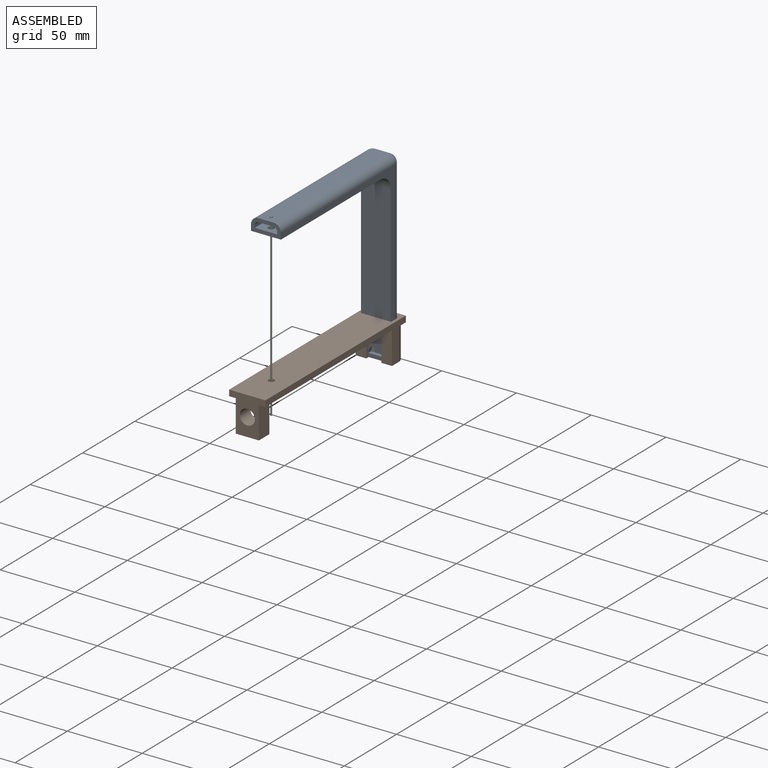
[diagram: assembled view]
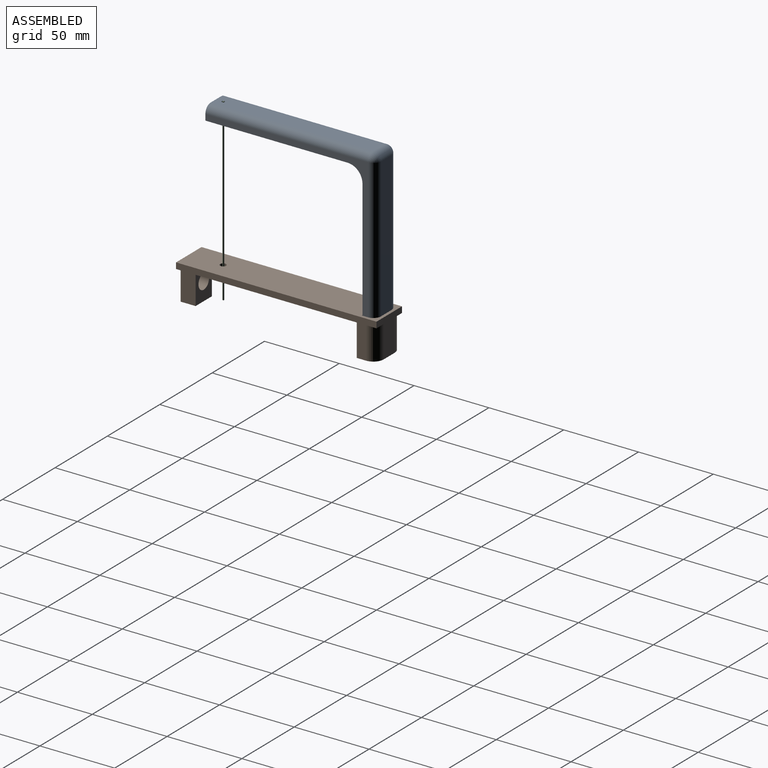
[diagram: assembled view, second angle]
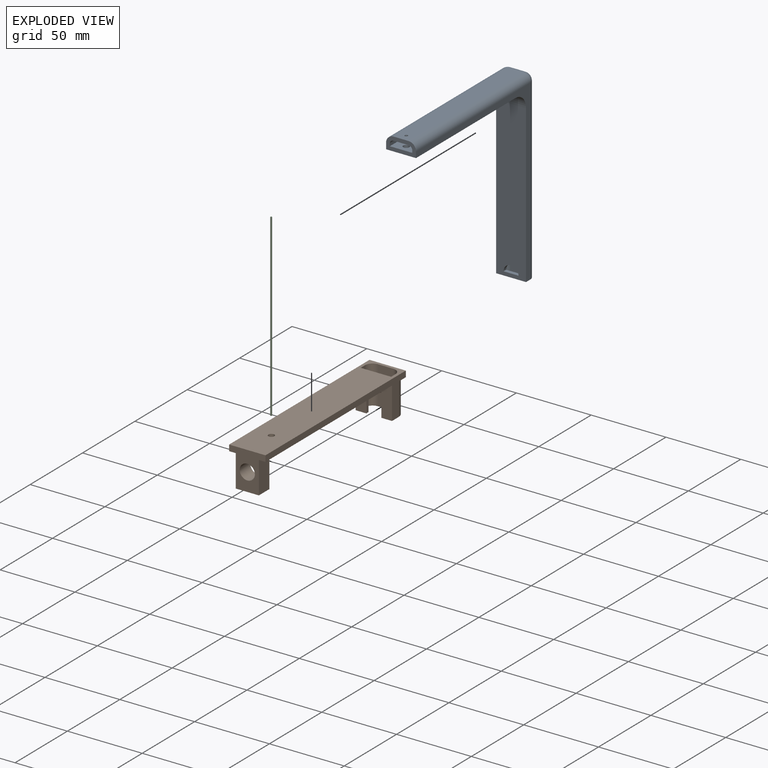
[diagram: exploded view]
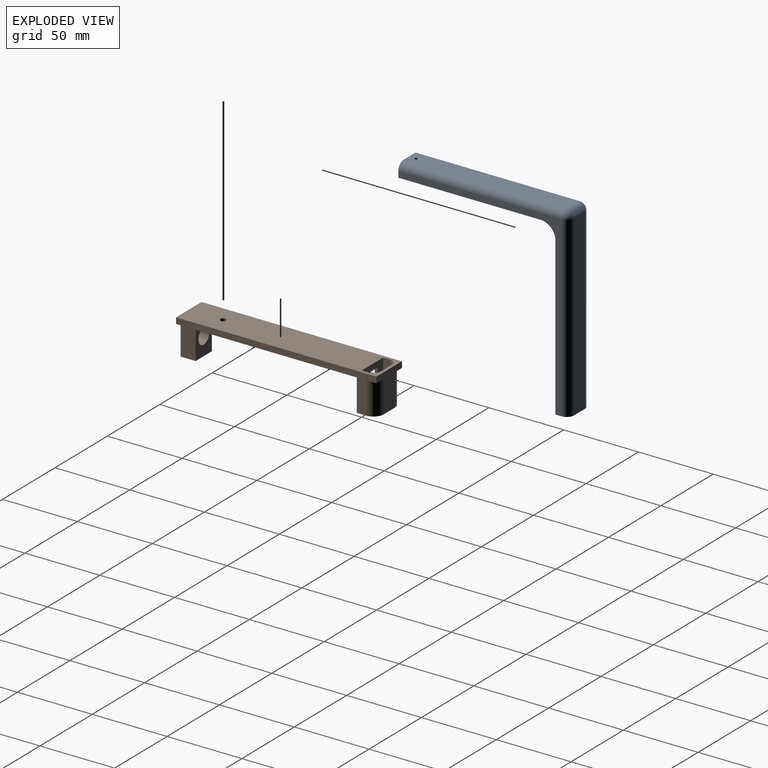
[diagram: exploded view, second angle]
ASSEMBLY  parts=3 mates=4
PART A: 34 faces, bbox 114x124x20 mm
  f0: plane 105x20mm, normal (-1,0,0), area 2060.7mm2, adj f2,f7,f8,f9,f31,f32
  f1: plane 105x15mm, normal (1,0,0), area 1535.7mm2, adj f2,f20,f21,f22,f31,f32
  f2: plane 20x9mm, normal (0,-1,0), area 112mm2, adj f0,f1,f6,f7,f8,f10,f13,f19
  f3: plane 109x10mm, normal (0,1,0), area 1086.9mm2, adj f4,f11,f12,f16,f30
  f4: plane 20x9mm, normal (-1,0,0), area 112mm2, adj f3,f5,f7,f8,f11,f12,f17,f18
  f5: plane 95x20mm, normal (0,-1,0), area 1887.4mm2, adj f4,f7,f8,f9,f33
  f6: plane 119x10mm, normal (1,0,0), area 1190mm2, adj f2,f10,f13,f16
  f7: plane 119x109mm, normal (0,0,1), area 917.5mm2, adj f0,f2,f4,f5,f9,f10,f11
  f8: plane 119x109mm, normal (0,0,-1), area 917.5mm2, adj f0,f2,f4,f5,f9,f12,f13
  f9: cylinder r=10mm len=20mm, axis (0,0,1), area 314.2mm2, adj f0,f5,f7,f8
  f10: cylinder r=5mm len=119mm, axis (0,-1,0), area 934.6mm2, adj f2,f6,f7,f14
  f11: cylinder r=5mm len=109mm, axis (1,0,0), area 856.1mm2, adj f3,f4,f7,f14
  f12: cylinder r=5mm len=109mm, axis (-1,0,0), area 856.1mm2, adj f3,f4,f8,f15
  f13: cylinder r=5mm len=119mm, axis (0,1,0), area 934.6mm2, adj f2,f6,f8,f15
  f14: sphere r=5mm, area 39.3mm2, adj f10,f11,f16
  f15: sphere r=5mm, area 39.3mm2, adj f12,f13,f16
  f16: cylinder r=5mm len=10mm, axis (0,0,-1), area 78.5mm2, adj f3,f6,f14,f15
  f17: plane 109x10mm, normal (0,-1,0), area 1086.9mm2, adj f4,f24,f25,f29,f30
  f18: plane 95x15mm, normal (0,1,0), area 1412.4mm2, adj f4,f20,f21,f22,f33
  f19: plane 119x10mm, normal (-1,0,0), area 1190mm2, adj f2,f23,f26,f29
  f20: plane 119x109mm, normal (0,0,-1), area 373.3mm2, adj f1,f2,f4,f18,f22,f23,f24
  f21: plane 119x109mm, normal (0,0,1), area 373.3mm2, adj f1,f2,f4,f18,f22,f25,f26
  f22: cylinder r=12.5mm len=15mm, axis (0,0,1), area 294.5mm2, adj f1,f18,f20,f21
  f23: cylinder r=2.5mm len=119mm, axis (0,-1,0), area 467.3mm2, adj f2,f19,f20,f27
  f24: cylinder r=2.5mm len=109mm, axis (1,0,0), area 428mm2, adj f4,f17,f20,f27
  f25: cylinder r=2.5mm len=109mm, axis (-1,0,0), area 428mm2, adj f4,f17,f21,f28
  f26: cylinder r=2.5mm len=119mm, axis (0,1,0), area 467.3mm2, adj f2,f19,f21,f28
  f27: sphere r=2.5mm, area 9.8mm2, adj f23,f24,f29
  f28: sphere r=2.5mm, area 9.8mm2, adj f25,f26,f29
  f29: cylinder r=2.5mm len=10mm, axis (0,0,-1), area 39.3mm2, adj f17,f19,f27,f28
  f30: cylinder r=1mm len=2.5mm, axis (0,1,0), area 15.7mm2, adj f3,f17
  f31: plane 10x2.5mm, normal (0,1,0), area 25mm2, adj f0,f1,f32
  f32: cylinder r=5mm len=10mm, axis (-1,0,0), area 39.3mm2, adj f0,f1,f31
  f33: cylinder r=2mm len=4mm, axis (0,-1,0), area 31.4mm2, adj f5,f18
PART B: 27 faces, bbox 24.3x134x25.4 mm
  f0: plane 122.8x24.3mm, normal (0,0,1), area 2787.9mm2, adj f3,f7,f8,f9,f15,f16,f17,f18
  f1: plane 7x7mm, normal (0,0,1), area 10.5mm2, adj f9,f10,f19
  f2: plane 25.4x4.2mm, normal (-1,0,0), area 106.7mm2, adj f3,f11,f12,f20
  f3: plane 25.4x20.3mm, normal (0,1,0), area 301.6mm2, adj f0,f2,f4,f12,f16,f17,f20
  f4: plane 25.4x4.2mm, normal (1,0,0), area 106.7mm2, adj f3,f5,f12,f20
  f5: cylinder r=5mm len=25.4mm, axis (0,0,1), area 199.5mm2, adj f4,f6,f12,f20
  f6: plane 25.4x10.3mm, normal (0,-1,0), area 261.6mm2, adj f5,f11,f12,f20
  f7: plane 134x25.4mm, normal (-1,0,0), area 668.7mm2, adj f0,f8,f10,f12,f13,f14,f15,f20
  f8: plane 25.4x24.3mm, normal (0,-1,0), area 348.8mm2, adj f0,f7,f9,f12,f21,f22,f24,f26
  f9: plane 134x25.4mm, normal (1,0,0), area 668.7mm2, adj f0,f1,f8,f10,f12,f18,f19,f20
  f10: plane 25.4x24.3mm, normal (0,1,0), area 317.6mm2, adj f1,f7,f9,f12,f13,f14,f19,f20
  f11: cylinder r=5mm len=25.4mm, axis (0,0,1), area 199.5mm2, adj f2,f6,f12,f20
  f12: plane 134x24.3mm, normal (0,0,-1), area 3067.6mm2, adj f2,f3,f4,f5,f6,f7,f8,f9
  f13: plane 7x7mm, normal (0,0,1), area 10.5mm2, adj f7,f10,f14
  f14: cylinder r=7mm len=21.4mm, axis (0,0,-1), area 235.3mm2, adj f7,f10,f13,f20
  f15: plane 21.4x7.15mm, normal (0,-1,0), area 153mm2, adj f0,f7,f16,f20
  f16: plane 21.4x2mm, normal (1,0,0), area 42.8mm2, adj f0,f3,f15,f20
  f17: plane 21.4x2mm, normal (-1,0,0), area 42.8mm2, adj f0,f3,f18,f20
  f18: plane 21.4x7.15mm, normal (0,-1,0), area 153mm2, adj f0,f9,f17,f20
  f19: cylinder r=7mm len=21.4mm, axis (0,0,-1), area 235.3mm2, adj f1,f9,f10,f20
  f20: plane 24.3x13.2mm, normal (0,0,1), area 103.7mm2, adj f2,f3,f4,f5,f6,f7,f9,f10
  f21: plane 21.4x10mm, normal (-1,0,0), area 214mm2, adj f0,f8,f23,f24
  f22: plane 21.4x10mm, normal (1,0,0), area 214mm2, adj f0,f8,f23,f24
  f23: plane 21.4x15.5mm, normal (0,1,0), area 251.6mm2, adj f0,f21,f22,f24,f26
  f24: plane 15.5x10mm, normal (0,0,1), area 155mm2, adj f8,f21,f22,f23
  f25: cylinder r=2mm len=4mm, axis (0,0,1), area 50.3mm2, adj f0,f12
  f26: cylinder r=5.05mm len=10.1mm, axis (0,-1,0), area 317.3mm2, adj f8,f23
PART C: 3 faces, bbox 1x1x120 mm
  f0: cylinder r=0.5mm len=120mm, axis (0,0,-1), area 377mm2, adj f1,f2
  f1: plane 1x1mm, normal (0,0,1), area 0.8mm2, adj f0
  f2: plane 1x1mm, normal (0,0,-1), area 0.8mm2, adj f0
PLACE A rot(axis=(0.58,0.58,0.58),120deg) t=(2,56,89.6)mm
PLACE B rot(axis=(0,1,0),180deg) t=(12.15,60.4,-4)mm
PLACE C rot(axis=(-1,0,0),0deg) t=(12,-44,-21.19)mm
MATE planar A.f2 <-> B.f20  axis (0,0,-1) through (19.5,58.5,-25.4)mm
MATE planar A.f6 <-> B.f6  axis (0,1,0) through (12,65,-25.4)mm
MATE planar A.f8 <-> B.f2  axis (-1,0,0) through (2,32.95,61.67)mm
MATE slider C.f0 <-> A.f30  axis (0,0,-1) through (12,-44,98.81)mm
